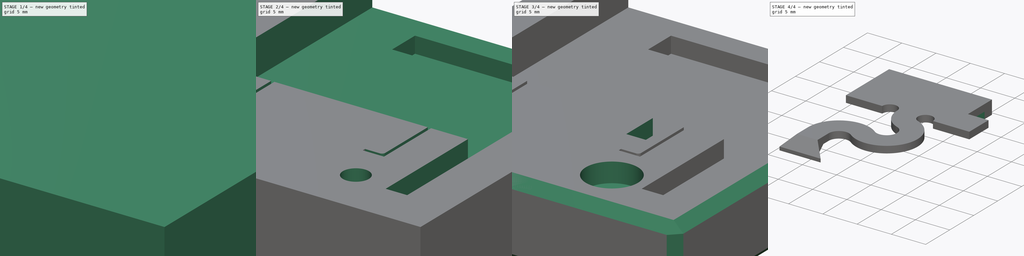
[diagram: build sequence overview — one tinted view per stage of 4, left to right]
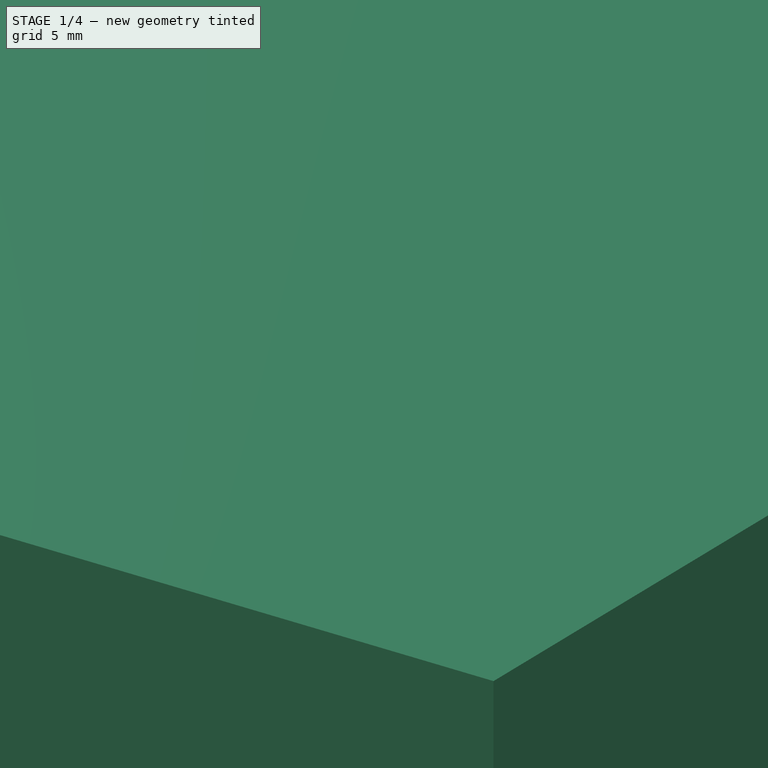
[diagram: stage 1 of 4 — iso view after this stage's code; geometry added in this stage tinted green]
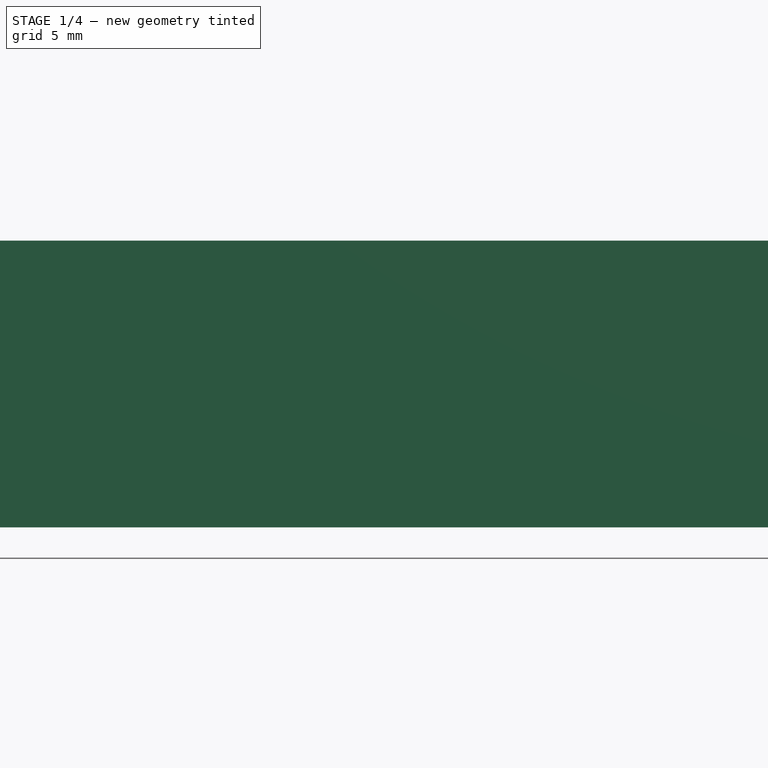
[diagram: stage 1 of 4 — front view after this stage's code; geometry added in this stage tinted green]
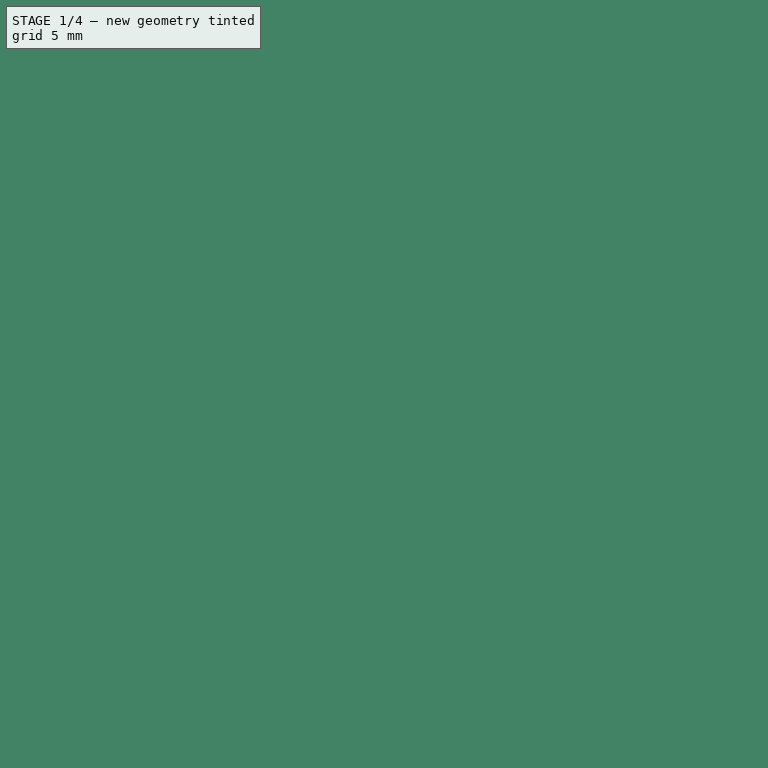
[diagram: stage 1 of 4 — top view after this stage's code; geometry added in this stage tinted green]
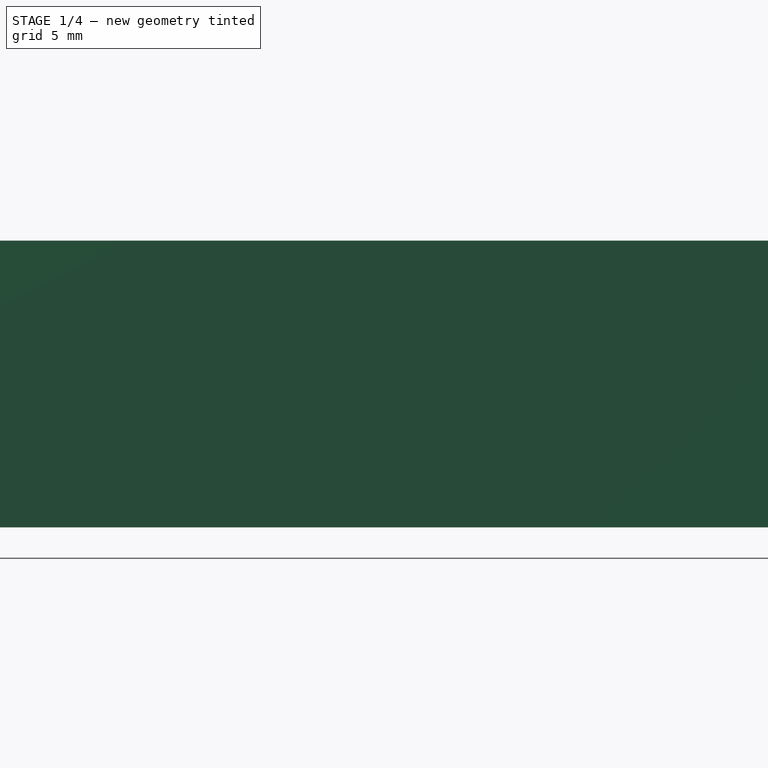
[diagram: stage 1 of 4 — right view after this stage's code; geometry added in this stage tinted green]
FCSTD DOCUMENT  (FreeCAD 0.20R28647 (Git))
Label: Einhell-battery-connector
License: All rights reserved
LicenseURL: http://en.wikipedia.org/wiki/All_rights_reserved
objects: Sketcher::SketchObject×7, PartDesign::Pocket×4, PartDesign::Body×4, PartDesign::Pad×3, PartDesign::Chamfer×2, PartDesign::FeatureBase×2, Part::Cut×1
note: 32 computed .brp shape members not serialized (recipe doc carries the construction recipe); baked Part::Feature solids carry a one-line shape summary decoded from their .brp

FEATURE [Sketcher::SketchObject] Sketch
  FullyConstrained = true
  MapMode = 5
  Placement = pos=(0,0,0) rot=(1,0,0;1.5708rad)
  Support = -> [XZ_Plane]
  sketch-geometry (4):
    g0: LineSegment StartX=-28 StartY=-12 StartZ=0 EndX=-28 EndY=0 EndZ=0
    g1: LineSegment StartX=-28 StartY=0 StartZ=0 EndX=28 EndY=0 EndZ=0
    g2: LineSegment StartX=28 StartY=0 StartZ=0 EndX=28 EndY=-12 EndZ=0
    g3: LineSegment StartX=28 StartY=-12 StartZ=0 EndX=-28 EndY=-12 EndZ=0
  constraints (11):
    c: Vertical(g0)
    c: Coincident(g0,g1)
    c: Coincident(g1,g2)
    c: Vertical(g2)
    c: Coincident(g2,g3)
    c: Symmetric(g0,g1,g-2)
    c: DistanceX(g1,g1) = 56
    c: DistanceY(g2,g2) = 12
    c: Coincident(g3,g0)
    c: Horizontal(g3)
    c: PointOnObject(g1,g-1)
FEATURE [PartDesign::Pad] Pad
  Direction = (0,-1,2e-16)
  Length = 64
  Length2 = 10
  Placement = pos=(0,0,0) rot=(1,0,0;1.5708rad)
  Profile = -> Sketch
  ReferenceAxis = -> Sketch [N_Axis]
  Type = 0
FEATURE [PartDesign::Body] Body
  Group = -> [Sketch,Pad,Sketch002,Pocket,Sketch005,Sketch006,Pad001,Pocket001,Sketch007,Pocket002,Chamfer]
  Origin = -> Origin
  Tip = -> Chamfer
FEATURE [Sketcher::SketchObject] Sketch008
  FullyConstrained = false
  MapMode = 5
  Support = -> [XY_Plane002]
  sketch-geometry (9):
    g0: LineSegment StartX=5.26647 StartY=-64 StartZ=0 EndX=-9.54428 EndY=-64 EndZ=0
    g1: LineSegment StartX=-9 StartY=-50.2 StartZ=0 EndX=-9 EndY=-41.2 EndZ=0
    g2: LineSegment StartX=9 StartY=-50.2 StartZ=0 EndX=5.26647 EndY=-64 EndZ=0
    g3: LineSegment StartX=-9 StartY=-50.2 StartZ=0 EndX=-7.66584 EndY=-56.8971 EndZ=0
    g4: LineSegment StartX=-7.66584 StartY=-56.8971 StartZ=0 EndX=-9.54428 EndY=-64 EndZ=0
    g5: LineSegment StartX=-9 StartY=-41.2 StartZ=0 EndX=6.44761 EndY=-41.2 EndZ=0
    g6: LineSegment StartX=6.44761 StartY=-41.2 StartZ=0 EndX=6.44761 EndY=-45.587 EndZ=0
    g7: LineSegment StartX=6.44761 StartY=-45.587 StartZ=0 EndX=9 EndY=-45.587 EndZ=0
    g8: LineSegment StartX=9 StartY=-45.587 StartZ=0 EndX=9 EndY=-50.2 EndZ=0
  constraints (15):
    c: Coincident(g6,g7)
    c: Coincident(g1,g5)
    c: Horizontal(g0)
    c: Vertical(g1)
    c: Coincident(g8,g2)
    c: Coincident(g2,g0)
    c: Coincident(g1,g3)
    c: Coincident(g3,g4)
    c: Coincident(g4,g0)
    c: Coincident(g5,g6)
    c: Horizontal(g5)
    c: Coincident(g7,g8)
    c: Vertical(g8)
    c: Vertical(g6)
    c: Horizontal(g7)
FEATURE [PartDesign::Pad] Pad002
  Direction = (0,0,1)
  Length = 2
  Length2 = 10
  Profile = -> Sketch008
  ReferenceAxis = -> Sketch008 [N_Axis]
  Reversed = true
  Type = 0
FEATURE [PartDesign::Body] Body003
  Group = -> [Clone]
  Origin = -> Origin003
  Tip = -> Clone
FEATURE [PartDesign::Chamfer] Chamfer001
  Angle = 45
  Base = -> Pad002 [Edge21]
  BaseFeature = -> Pad002
  ChamferType = 0
  FlipDirection = false
  Size = 1.5
  Size2 = 1
  SupportTransform = false
  UseAllEdges = false
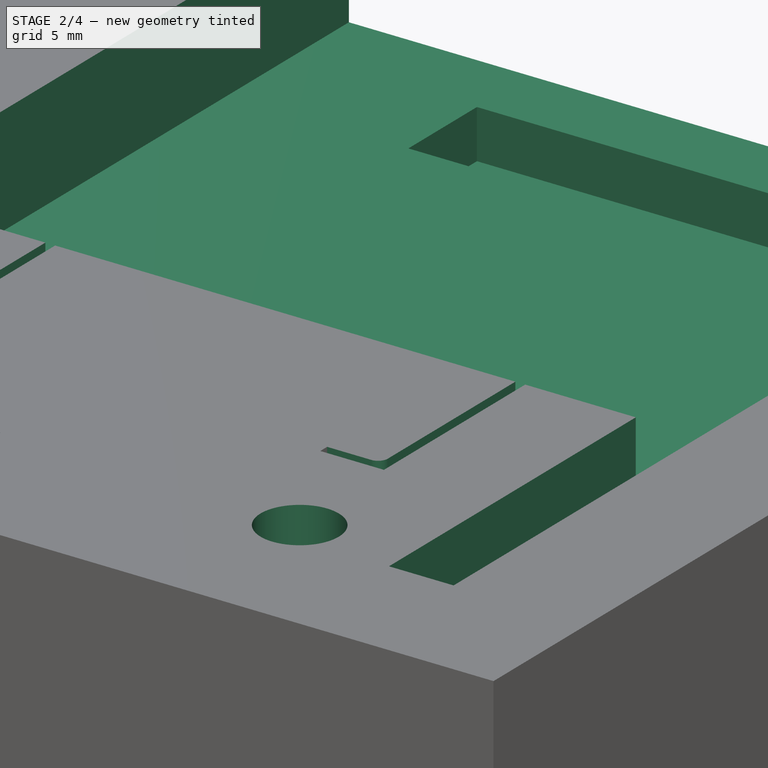
[diagram: stage 2 of 4 — iso view after this stage's code; geometry added in this stage tinted green]
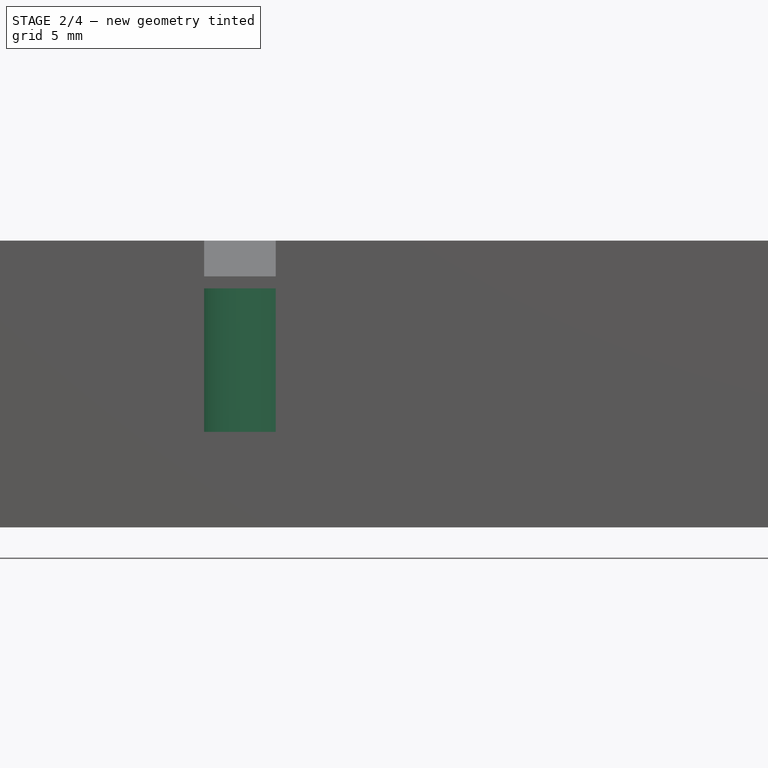
[diagram: stage 2 of 4 — front view after this stage's code; geometry added in this stage tinted green]
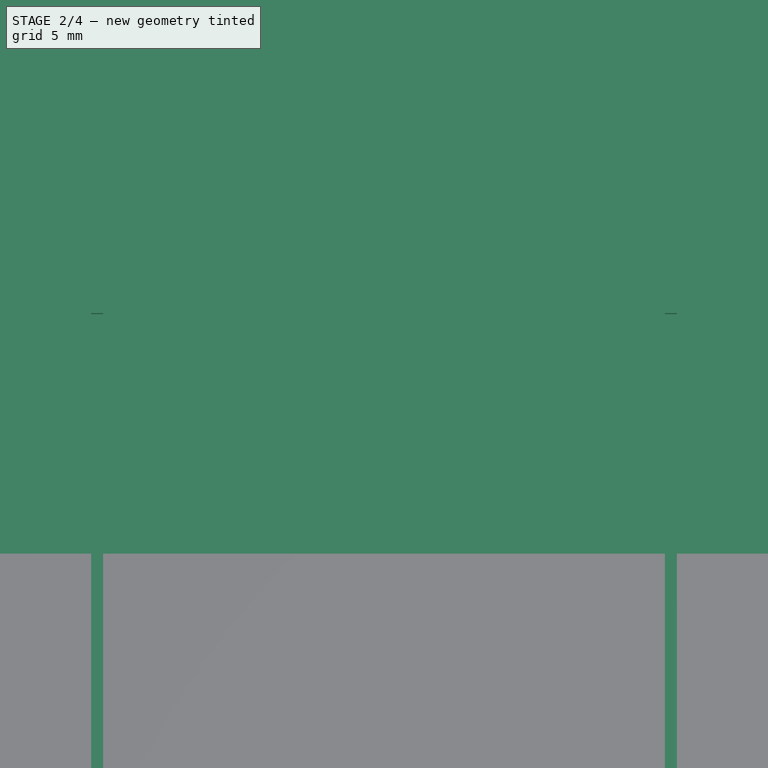
[diagram: stage 2 of 4 — top view after this stage's code; geometry added in this stage tinted green]
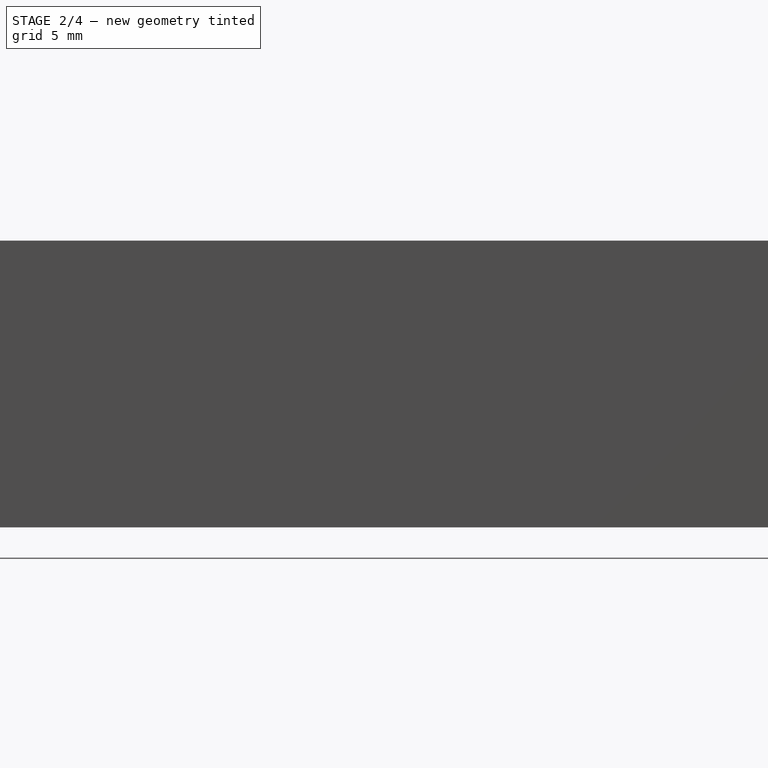
[diagram: stage 2 of 4 — right view after this stage's code; geometry added in this stage tinted green]
FEATURE [Sketcher::SketchObject] Sketch002
  FullyConstrained = false
  MapMode = 5
  Support = -> [XY_Plane]
  sketch-geometry (27):
    g0: LineSegment StartX=-24.2 StartY=0 StartZ=0 EndX=-24.2 EndY=-57.2 EndZ=0
    g1: LineSegment StartX=-24.2 StartY=-57.2 StartZ=0 EndX=-17.9 EndY=-57.2 EndZ=0
    g2: LineSegment StartX=-17.9 StartY=-57.2 StartZ=0 EndX=-17.9 EndY=-39.2 EndZ=0
    g3: LineSegment StartX=-17.9 StartY=-39.2 StartZ=0 EndX=17.9 EndY=-39.2 EndZ=0
    g4: LineSegment StartX=17.9 StartY=-39.2 StartZ=0 EndX=17.9 EndY=-57.2 EndZ=0
    g5: LineSegment StartX=17.9 StartY=-57.2 StartZ=0 EndX=24.2 EndY=-57.2 EndZ=0
    g6: LineSegment StartX=24.2 StartY=-57.2 StartZ=0 EndX=24.2 EndY=0 EndZ=0
    g7: LineSegment StartX=24.2 StartY=0 StartZ=0 EndX=-24.2 EndY=0 EndZ=0
    g8: LineSegment StartX=9 StartY=-50.2 StartZ=0 EndX=9 EndY=-41.2 EndZ=0
    g9: LineSegment StartX=9 StartY=-41.2 StartZ=0 EndX=-9 EndY=-41.2 EndZ=0
    g10: LineSegment StartX=-9 StartY=-41.2 StartZ=0 EndX=-9 EndY=-50.2 EndZ=0
    g11: LineSegment StartX=-9 StartY=-50.2 StartZ=0 EndX=-3.7 EndY=-50.2 EndZ=0
    g12: LineSegment StartX=-7.52646 StartY=-60.2 StartZ=0 EndX=-7.52646 EndY=-67.7749 EndZ=0
    g13: LineSegment StartX=-7.52646 StartY=-67.7749 StartZ=0 EndX=-4.52646 EndY=-67.7749 EndZ=0
    g14: LineSegment StartX=-4.52646 StartY=-67.7749 StartZ=0 EndX=-4.52646 EndY=-60.2 EndZ=0
    g15: ArcOfCircle CenterX=0.627916 CenterY=-55.4413 CenterZ=0 NormalX=0 NormalY=0 NormalZ=1 AngleXU=0 Radius=1.5 StartAngle=4.05751 EndAngle=7.49411
    g16: ArcOfCircle CenterX=-3.02646 CenterY=-60.2 CenterZ=0 NormalX=0 NormalY=0 NormalZ=1 AngleXU=0 Radius=1.5 StartAngle=0.915918 EndAngle=3.14159
    g17: ArcOfCircle CenterX=0.627916 CenterY=-55.4413 CenterZ=0 NormalX=0 NormalY=0 NormalZ=1 AngleXU=0 Radius=4.5 StartAngle=4.05751 EndAngle=7.49411
    g18: ArcOfCircle CenterX=-3.02646 CenterY=-60.2 CenterZ=0 NormalX=0 NormalY=0 NormalZ=1 AngleXU=0 Radius=4.5 StartAngle=0.915918 EndAngle=3.14159
    g19: ArcOfCircle CenterX=2.6 CenterY=-50.2 CenterZ=0 NormalX=0 NormalY=0 NormalZ=1 AngleXU=0 Radius=1.1 StartAngle=-4.4e-15 EndAngle=4.35251
    g20: ArcOfCircle CenterX=2.6 CenterY=-50.2 CenterZ=0 NormalX=0 NormalY=0 NormalZ=1 AngleXU=0 Radius=4.1 StartAngle=3.14159 EndAngle=4.35251
    g21: LineSegment StartX=9 StartY=-50.2 StartZ=0 EndX=3.7 EndY=-50.2 EndZ=0
    g22: ArcOfCircle CenterX=-2.6 CenterY=-50.2 CenterZ=0 NormalX=0 NormalY=0 NormalZ=1 AngleXU=0 Radius=1.1 StartAngle=2.7e-15 EndAngle=3.14159
    g23: LineSegment StartX=-9 StartY=-41.2 StartZ=0 EndX=6 EndY=-41.2 EndZ=0
    g24: LineSegment StartX=6 StartY=-41.2 StartZ=0 EndX=6 EndY=-46.2 EndZ=0
    g25: LineSegment StartX=6 StartY=-46.2 StartZ=0 EndX=9 EndY=-46.2 EndZ=0
    g26: LineSegment StartX=9 StartY=-46.2 StartZ=0 EndX=9 EndY=-50.2 EndZ=0
  constraints (74):
    c: PointOnObject(g0,g-1)
    c: Vertical(g0)
    c: Coincident(g0,g1)
    c: Horizontal(g1)
    c: Coincident(g1,g2)
    c: Vertical(g2)
    c: Coincident(g2,g3)
    c: Horizontal(g3)
    c: Coincident(g3,g4)
    c: Vertical(g4)
    c: Coincident(g4,g5)
    c: Coincident(g5,g6)
    c: PointOnObject(g6,g-1)
    c: Vertical(g6)
    c: Coincident(g6,g7)
    c: Coincident(g7,g0)
    c: Symmetric(g0,g5,g-2)
    c: DistanceX(g7,g7) = 48.4
    c: DistanceY(g6,g6) = 57.2
    c: Horizontal(g5)
    c: DistanceX(g3,g3) = 35.8
    c: DistanceY(g4,g4) = 18
    c: Equal(g1,g5)
    c: Vertical(g8)
    c: Coincident(g8,g9)
    c: Horizontal(g9)
    c: Coincident(g9,g10)
    c: Vertical(g10)
    c: Symmetric(g8,g10,g-2)
    c: DistanceX(g9,g9) = 18
    c: DistanceY(g9,g2) = 2
    c: DistanceY(g10,g10) = 9
    c: Coincident(g10,g11)
    c: Horizontal(g11)
    c: Vertical(g12)
    c: Coincident(g12,g13)
    c: Horizontal(g13)
    c: Coincident(g13,g14)
    c: Vertical(g14)
    c: DistanceX(g13,g13) = 3
    c: Tangent(g16,g14) = 1.5708
    c: Coincident(g17,g15)
    c: Coincident(g18,g16)
    c: Tangent(g18,g12) = -1.5708
    c: Equal(g15,g16)
    c: Tangent(g15,g18) = 1.5708
    c: Radius(g15) = 1.5
    c: DistanceY(g12,g10) = 10
    c: Coincident(g20,g19)
    c: Tangent(g15,g20) = 1.5708
    c: Tangent(g17,g19) = 1.5708
    c: Coincident(g8,g21)
    c: Coincident(g21,g19)
    c: Horizontal(g21)
    c: PointOnObject(g19,g21)
    c: Tangent(g17,g16) = 1.5708
    c: PointOnObject(g20,g11)
    c: Coincident(g22,g11)
    c: PointOnObject(g22,g11)
    c: Equal(g21,g11)
    c: Tangent(g22,g20) = 1.5708
    c: Equal(g19,g22)
    c: Radius(g19) = 1.1
    c: Coincident(g10,g23)
    c: PointOnObject(g23,g9)
    c: Coincident(g23,g24)
    c: Vertical(g24)
    c: Coincident(g24,g25)
    c: PointOnObject(g25,g8)
    c: Horizontal(g25)
    c: Coincident(g25,g26)
    c: Coincident(g26,g21)
    c: DistanceY(g26,g26) = 4
    c: DistanceX(g25,g25) = 3
FEATURE [PartDesign::Pocket] Pocket  label="Inside Contour"
  BaseFeature = -> Pad
  Direction = (0,0,-1)
  Length = 8
  Length2 = 5
  Placement = pos=(0,0,0) rot=(1,0,0;1.5708rad)
  Profile = -> Sketch002
  ReferenceAxis = -> Sketch002 [N_Axis]
  Type = 0
FEATURE [Sketcher::SketchObject] Sketch005
  FullyConstrained = true
  MapMode = 5
  Support = -> [XY_Plane]
  sketch-geometry (22):
    g0: LineSegment StartX=-12.25 StartY=-29 StartZ=0 EndX=-12.25 EndY=-49.5 EndZ=0
    g1: LineSegment StartX=-12.25 StartY=-49.5 StartZ=0 EndX=-3.75 EndY=-49.5 EndZ=0
    g2: LineSegment StartX=-3.75 StartY=-49.5 StartZ=0 EndX=-3.75 EndY=-49 EndZ=0
    g3: LineSegment StartX=-3.75 StartY=-49 StartZ=0 EndX=-11.25 EndY=-49 EndZ=0
    g4: LineSegment StartX=-11.75 StartY=-48.5 StartZ=0 EndX=-11.75 EndY=-29 EndZ=0
    g5: LineSegment StartX=-11.75 StartY=-29 StartZ=0 EndX=-12.25 EndY=-29 EndZ=0
    g6: LineSegment StartX=12.25 StartY=-29 StartZ=0 EndX=12.25 EndY=-49.5 EndZ=0
    g7: LineSegment StartX=12.25 StartY=-49.5 StartZ=0 EndX=3.75 EndY=-49.5 EndZ=0
    g8: LineSegment StartX=3.75 StartY=-49.5 StartZ=0 EndX=3.75 EndY=-49 EndZ=0
    g9: LineSegment StartX=3.75 StartY=-49 StartZ=0 EndX=11.25 EndY=-49 EndZ=0
    g10: LineSegment StartX=11.75 StartY=-48.5 StartZ=0 EndX=11.75 EndY=-29 EndZ=0
    g11: LineSegment StartX=11.75 StartY=-29 StartZ=0 EndX=12.25 EndY=-29 EndZ=0
    g12: LineSegment StartX=-15 StartY=-3.8 StartZ=0 EndX=15 EndY=-3.8 EndZ=0
    g13: LineSegment StartX=15 StartY=-3.8 StartZ=0 EndX=15 EndY=-8.8 EndZ=0
    g14: LineSegment StartX=15 StartY=-8.8 StartZ=0 EndX=-15 EndY=-8.8 EndZ=0
    g15: LineSegment StartX=-15 StartY=-8.8 StartZ=0 EndX=-15 EndY=-3.8 EndZ=0
    g16: ArcOfCircle CenterX=-11.25 CenterY=-48.5 CenterZ=0 NormalX=0 NormalY=0 NormalZ=1 AngleXU=0 Radius=0.5 StartAngle=3.14159 EndAngle=4.71239
    g17: GeomPoint X=-11.75 Y=-49 Z=0
    g18: ArcOfCircle CenterX=11.25 CenterY=-48.5 CenterZ=0 NormalX=0 NormalY=0 NormalZ=1 AngleXU=0 Radius=0.5 StartAngle=4.71239 EndAngle=6.28319
    g19: GeomPoint X=11.75 Y=-49 Z=0
    g20: Circle CenterX=-12.5 CenterY=-56 CenterZ=0 NormalX=0 NormalY=0 NormalZ=1 AngleXU=0 Radius=2
    g21: Circle CenterX=12.5 CenterY=-56 CenterZ=0 NormalX=0 NormalY=0 NormalZ=1 AngleXU=0 Radius=2
  constraints (57):
    c: Vertical(g0)
    c: Coincident(g0,g1)
    c: Horizontal(g1)
    c: Coincident(g1,g2)
    c: Coincident(g2,g3)
    c: Horizontal(g3)
    c: Coincident(g4,g5)
    c: Horizontal(g5)
    c: Vertical(g6)
    c: Coincident(g6,g7)
    c: Horizontal(g7)
    c: Coincident(g7,g8)
    c: Coincident(g8,g9)
    c: Horizontal(g9)
    c: Vertical(g10)
    c: Coincident(g10,g11)
    c: Coincident(g6,g11)
    c: Horizontal(g11)
    c: Vertical(g4)
    c: Vertical(g8)
    c: Equal(g8,g2)
    c: Equal(g2,g5)
    c: Coincident(g0,g5)
    c: Symmetric(g4,g10,g-2)
    c: DistanceX(g0,g10) = 24
    c: DistanceX(g11,g11) = 0.5
    c: Symmetric(g2,g8,g-2)
    c: DistanceY(g6) = -29
    c: Symmetric(g0,g6,g-2)
    c: DistanceX(g9,g19) = 8
    c: DistanceY(g19,g10) = 20
    c: Coincident(g12,g13)
    c: Coincident(g13,g14)
    c: Coincident(g14,g15)
    c: Coincident(g15,g12)
    c: Horizontal(g12)
    c: Vertical(g13)
    c: Vertical(g15)
    c: DistanceY(g12) = -3.8
    c: DistanceY(g13,g13) = 5
    c: DistanceX(g14,g14) = 30
    c: Symmetric(g13,g14,g-2)
    c: PointOnObject(g17,g3)
    c: PointOnObject(g17,g4)
    c: Tangent(g3,g16) = 1.5708
    c: Tangent(g4,g16) = 1.5708
    c: PointOnObject(g19,g9)
    c: PointOnObject(g19,g10)
    c: Tangent(g9,g18) = -1.5708
    c: Tangent(g10,g18) = -1.5708
    c: Equal(g18,g16)
    c: Radius(g16) = 0.5
    c: Symmetric(g20,g21,g-2)
    c: Equal(g21,g20)
    c: Diameter(g21) = 4
    c: DistanceX(g20,g21) = 25
    c: DistanceY(g21) = -56
FEATURE [Sketcher::SketchObject] Sketch006
  FullyConstrained = true
  MapMode = 5
  Support = -> [XY_Plane]
  sketch-geometry (10):
    g0: LineSegment StartX=-25.2 StartY=-12 StartZ=0 EndX=-22.6142 EndY=-12 EndZ=0
    g1: LineSegment StartX=-22.6142 StartY=-12 StartZ=0 EndX=-21.2 EndY=-13.4142 EndZ=0
    g2: LineSegment StartX=-21.2 StartY=-13.4142 StartZ=0 EndX=-21.2 EndY=-58 EndZ=0
    g3: LineSegment StartX=-21.2 StartY=-58 StartZ=0 EndX=-25.2 EndY=-58 EndZ=0
    g4: LineSegment StartX=-25.2 StartY=-58 StartZ=0 EndX=-25.2 EndY=-12 EndZ=0
    g5: LineSegment StartX=25.2 StartY=-12 StartZ=0 EndX=22.6142 EndY=-12 EndZ=0
    g6: LineSegment StartX=22.6142 StartY=-12 StartZ=0 EndX=21.2 EndY=-13.4142 EndZ=0
    g7: LineSegment StartX=21.2 StartY=-13.4142 StartZ=0 EndX=21.2 EndY=-58 EndZ=0
    g8: LineSegment StartX=21.2 StartY=-58 StartZ=0 EndX=25.2 EndY=-58 EndZ=0
    g9: LineSegment StartX=25.2 StartY=-58 StartZ=0 EndX=25.2 EndY=-12 EndZ=0
  constraints (28):
    c: Coincident(g0,g1)
    c: Coincident(g1,g2)
    c: Vertical(g2)
    c: Coincident(g2,g3)
    c: Horizontal(g3)
    c: Coincident(g3,g4)
    c: Coincident(g4,g0)
    c: Vertical(g4)
    c: Coincident(g5,g6)
    c: Coincident(g6,g7)
    c: Vertical(g7)
    c: Coincident(g7,g8)
    c: Horizontal(g8)
    c: Coincident(g8,g9)
    c: Coincident(g9,g5)
    c: Vertical(g9)
    c: Symmetric(g0,g5,g-2)
    c: Symmetric(g6,g1,g-2)
    c: DistanceY(g5) = -12
    c: Horizontal(g5)
    c: Horizontal(g0)
    c: Angle(g1) = -0.785398
    c: DistanceX(g1,g6) = 42.4
    c: Equal(g5,g0)
    c: Distance(g1) = 2
    c: DistanceX(g3,g3) = 4
    c: DistanceY(g4,g4) = 46
    c: Equal(g4,g9)
FEATURE [PartDesign::Pad] Pad001  label="Hooks"
  BaseFeature = -> Pocket
  Direction = (0,0,1)
  Length = 4.5
  Length2 = 10
  Placement = pos=(0,0,0) rot=(1,0,0;1.5708rad)
  Profile = -> Sketch006
  ReferenceAxis = -> Sketch006 [N_Axis]
  Reversed = true
  Type = 0
FEATURE [PartDesign::Pocket] Pocket001  label="Blades"
  BaseFeature = -> Pad001
  Direction = (0,0,-1)
  Length = 10.5
  Length2 = 5
  Placement = pos=(0,0,0) rot=(1,0,0;1.5708rad)
  Profile = -> Sketch005
  ReferenceAxis = -> Sketch005 [N_Axis]
  Type = 0
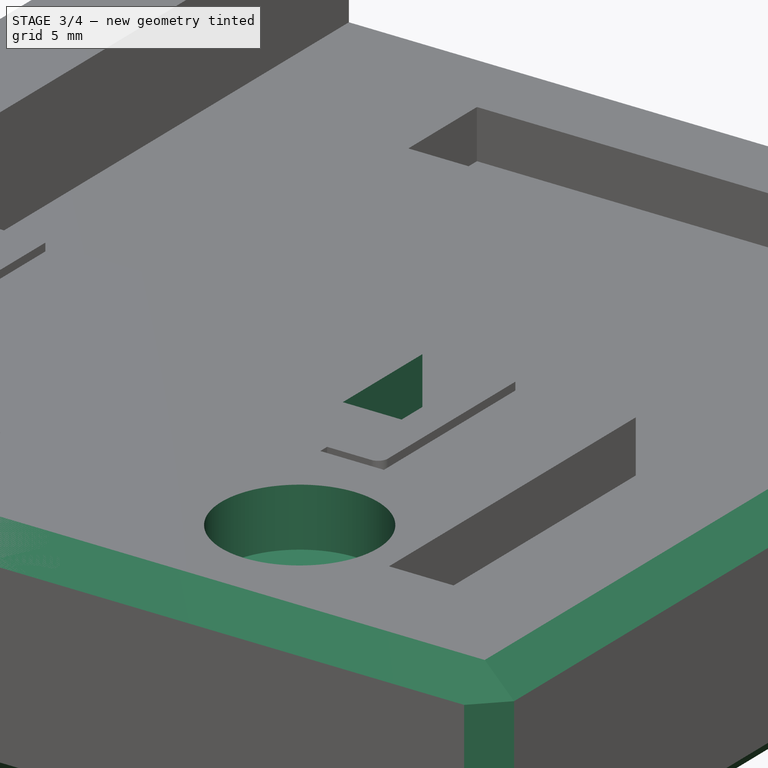
[diagram: stage 3 of 4 — iso view after this stage's code; geometry added in this stage tinted green]
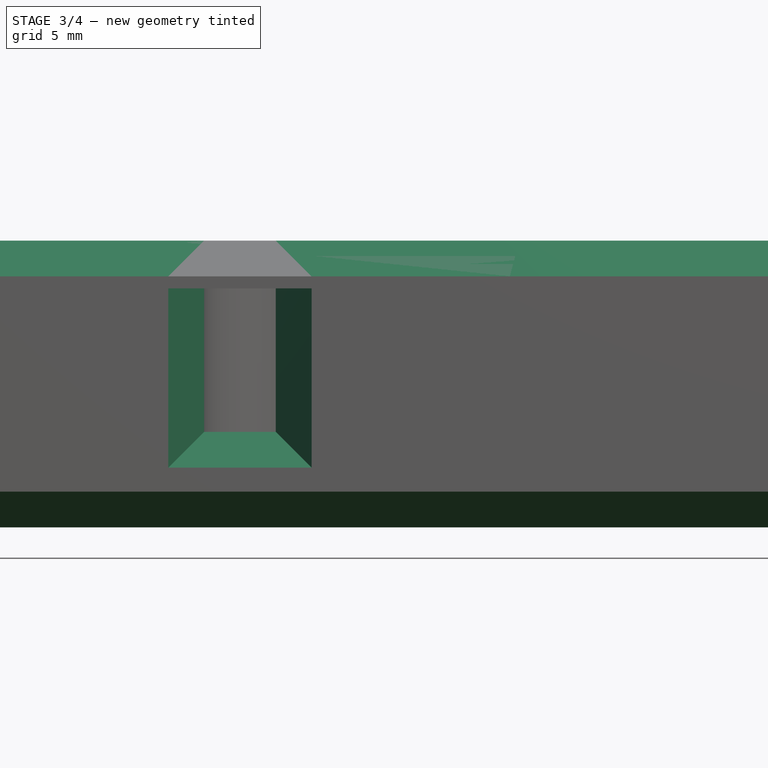
[diagram: stage 3 of 4 — front view after this stage's code; geometry added in this stage tinted green]
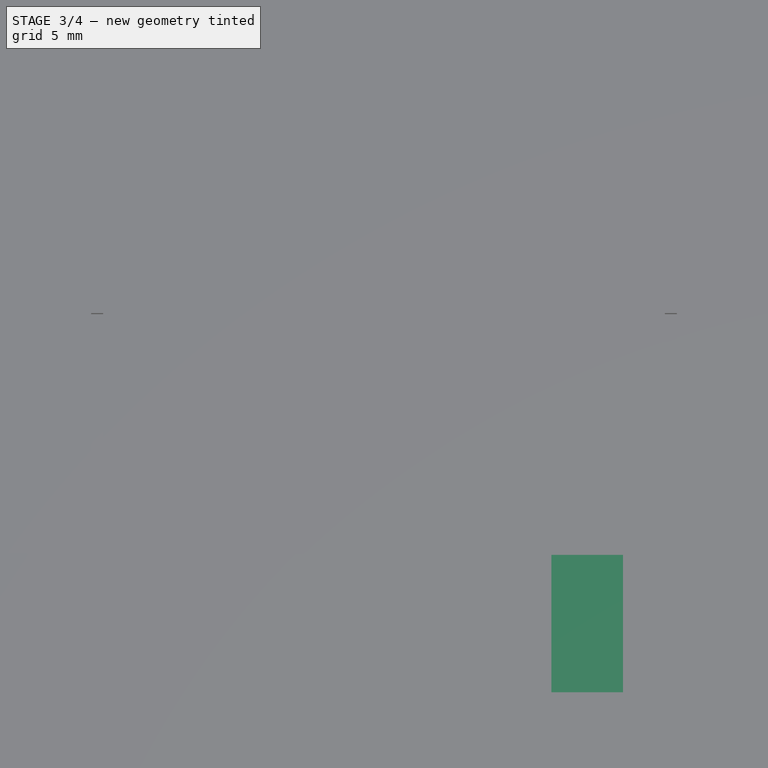
[diagram: stage 3 of 4 — top view after this stage's code; geometry added in this stage tinted green]
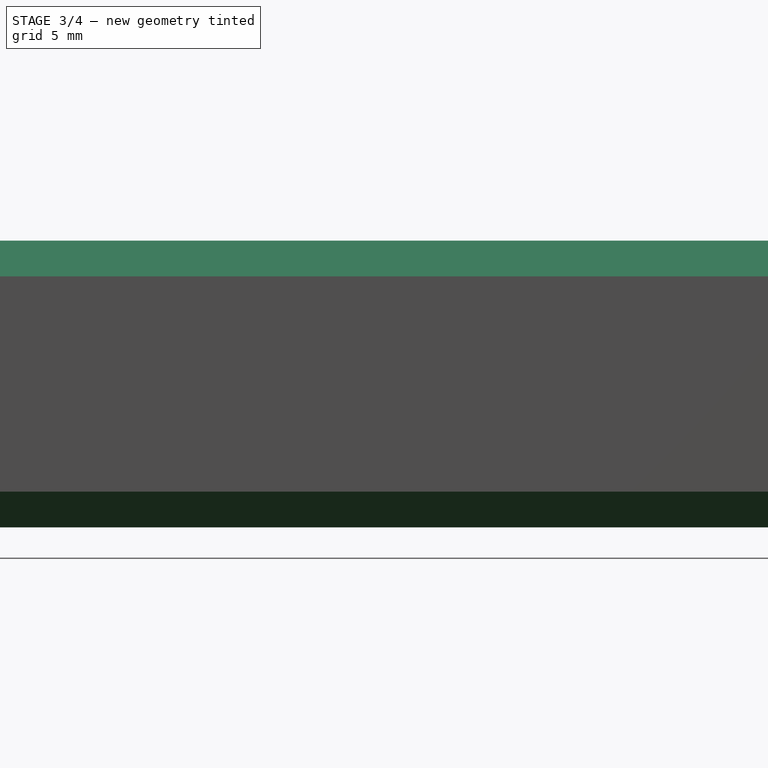
[diagram: stage 3 of 4 — right view after this stage's code; geometry added in this stage tinted green]
FEATURE [Sketcher::SketchObject] Sketch007
  FullyConstrained = true
  MapMode = 5
  Support = -> [XY_Plane]
  sketch-geometry (6):
    g0: LineSegment StartX=7 StartY=-38 StartZ=0 EndX=10 EndY=-38 EndZ=0
    g1: LineSegment StartX=10 StartY=-38 StartZ=0 EndX=10 EndY=-45 EndZ=0
    g2: LineSegment StartX=10 StartY=-45 StartZ=0 EndX=7 EndY=-45 EndZ=0
    g3: LineSegment StartX=7 StartY=-45 StartZ=0 EndX=7 EndY=-38 EndZ=0
    g4: Circle CenterX=-12.5 CenterY=-56 CenterZ=0 NormalX=0 NormalY=0 NormalZ=1 AngleXU=0 Radius=4
    g5: Circle CenterX=12.5 CenterY=-56 CenterZ=0 NormalX=0 NormalY=0 NormalZ=1 AngleXU=0 Radius=4
  constraints (17):
    c: Coincident(g0,g1)
    c: Coincident(g1,g2)
    c: Coincident(g2,g3)
    c: Coincident(g3,g0)
    c: Horizontal(g0)
    c: Horizontal(g2)
    c: Vertical(g1)
    c: Vertical(g3)
    c: DistanceY(g1) = -45
    c: DistanceX(g0) = 7
    c: DistanceX(g0,g0) = 3
    c: DistanceY(g3,g3) = 7
    c: Equal(g4,g5)
    c: Symmetric(g5,g4,g-2)
    c: Diameter(g5) = 8
    c: DistanceX(g4,g5) = 25
    c: DistanceY(g5) = -56
FEATURE [PartDesign::Pocket] Pocket002  label="Code-notch"
  BaseFeature = -> Pocket001
  Direction = (0,0,-1)
  Length = 3
  Length2 = 5
  Placement = pos=(0,0,0) rot=(1,0,0;1.5708rad)
  Profile = -> Sketch007
  ReferenceAxis = -> Sketch007 [N_Axis]
  Type = 0
FEATURE [PartDesign::Chamfer] Chamfer
  Angle = 45
  Base = -> Pocket002 [Face2,Face6,Face1,Face5,Edge8,Edge29]
  BaseFeature = -> Pocket002
  ChamferType = 0
  FlipDirection = false
  Placement = pos=(0,0,0) rot=(1,0,0;1.5708rad)
  Size = 1.5
  Size2 = 1
  SupportTransform = false
  UseAllEdges = false
FEATURE [PartDesign::FeatureBase] Clone
  BaseFeature = -> Body
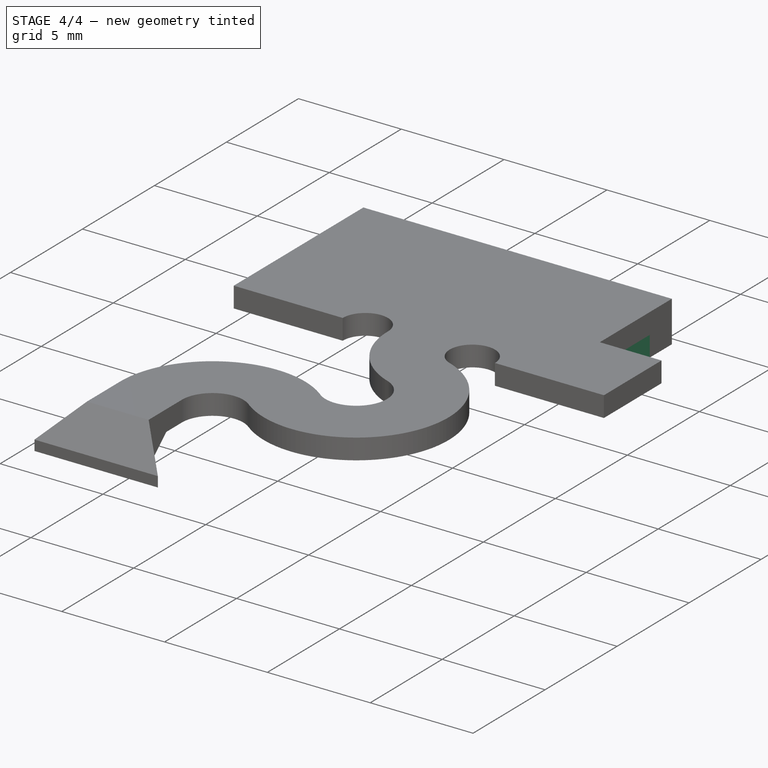
[diagram: stage 4 of 4 — iso view after this stage's code; geometry added in this stage tinted green]
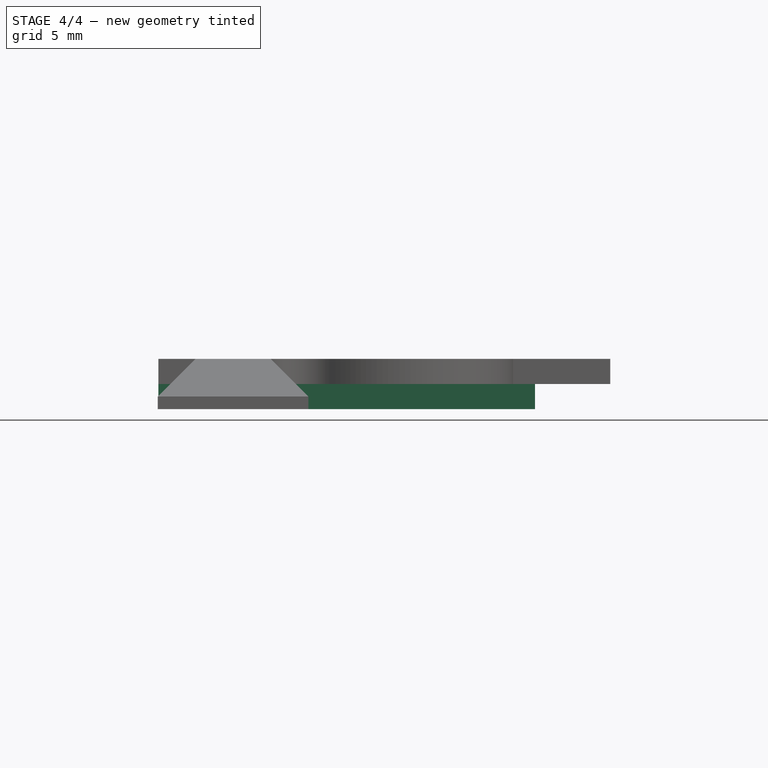
[diagram: stage 4 of 4 — front view after this stage's code; geometry added in this stage tinted green]
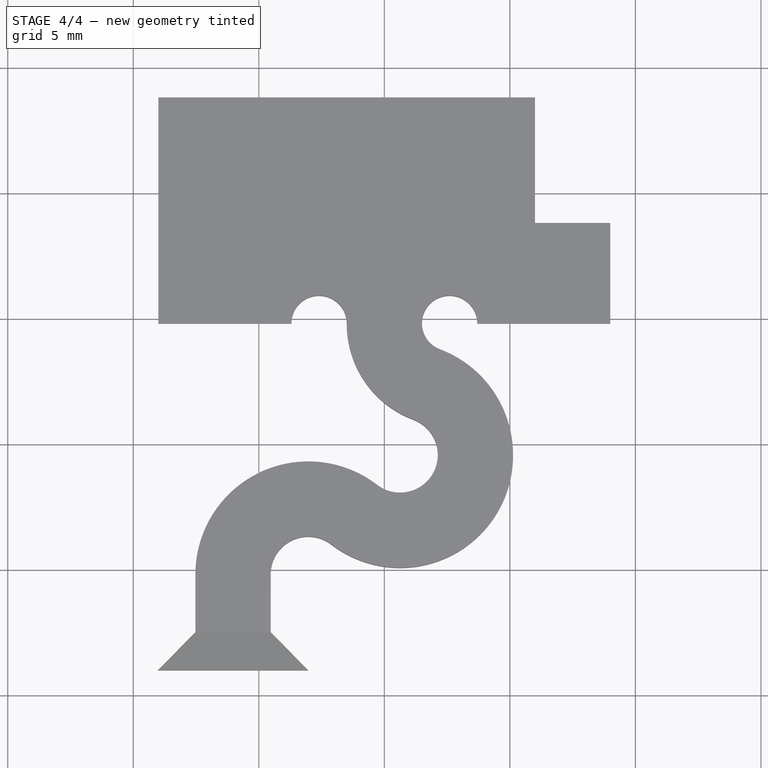
[diagram: stage 4 of 4 — top view after this stage's code; geometry added in this stage tinted green]
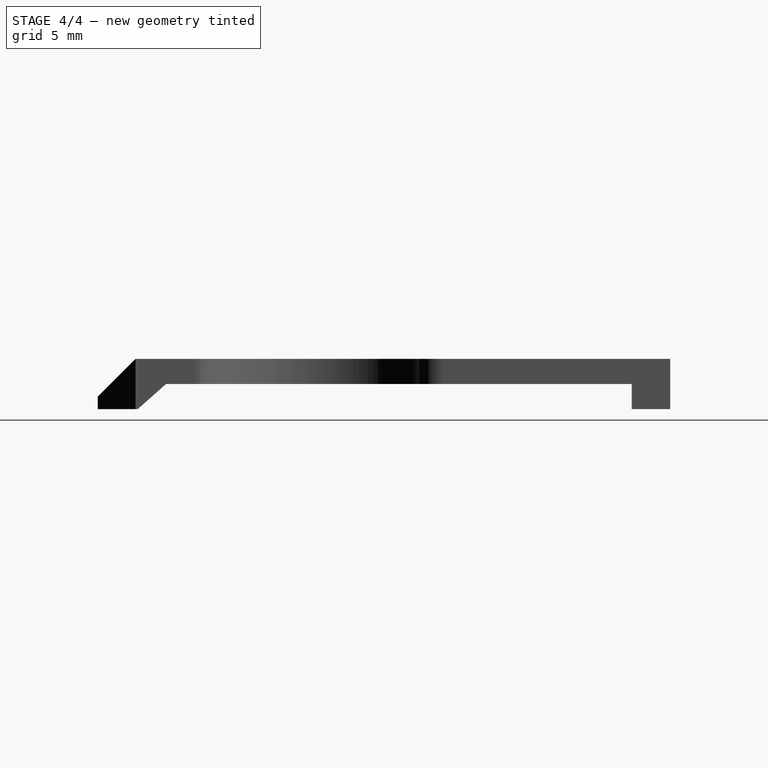
[diagram: stage 4 of 4 — right view after this stage's code; geometry added in this stage tinted green]
FEATURE [PartDesign::Body] Body002
  Group = -> [Sketch008,Pad002,Chamfer001]
  Origin = -> Origin002
  Tip = -> Chamfer001
FEATURE [Part::Cut] Cut
  Base = -> Body002
  Tool = -> Body003
FEATURE [PartDesign::FeatureBase] BaseFeature
  BaseFeature = -> Cut
FEATURE [Sketcher::SketchObject] Sketch009
  FullyConstrained = false
  MapMode = 5
  Placement = pos=(0,0,0) rot=(0.57735,0.57735,0.57735;2.0944rad)
  Support = -> [YZ_Plane004]
  sketch-geometry (4):
    g0: LineSegment StartX=-42.7307 StartY=-2 StartZ=0 EndX=-62.4091 EndY=-2 EndZ=0
    g1: LineSegment StartX=-61.2821 StartY=-1 StartZ=0 EndX=-42.7307 EndY=-1 EndZ=0
    g2: LineSegment StartX=-42.7307 StartY=-1 StartZ=0 EndX=-42.7307 EndY=-2 EndZ=0
    g3: LineSegment StartX=-61.2821 StartY=-1 StartZ=0 EndX=-62.4091 EndY=-2 EndZ=0
  constraints (9):
    c: Coincident(g1,g2)
    c: Coincident(g2,g0)
    c: Horizontal(g0)
    c: Horizontal(g1)
    c: Vertical(g2)
    c: DistanceY(g2,g2) = 1
    c: Coincident(g3,g1)
    c: Coincident(g3,g0)
    c: DistanceY(g1) = -1
FEATURE [PartDesign::Pocket] Pocket003
  BaseFeature = -> BaseFeature
  Direction = (-1,2e-16,-3e-16)
  Length = 5
  Length2 = 5
  Midplane = true
  Profile = -> Sketch009
  ReferenceAxis = -> Sketch009 [N_Axis]
  Type = 1
FEATURE [PartDesign::Body] Body004  label="CableCover"
  BaseFeature = -> Cut
  Group = -> [BaseFeature,Sketch009,Pocket003]
  Origin = -> Origin004
  Tip = -> Pocket003
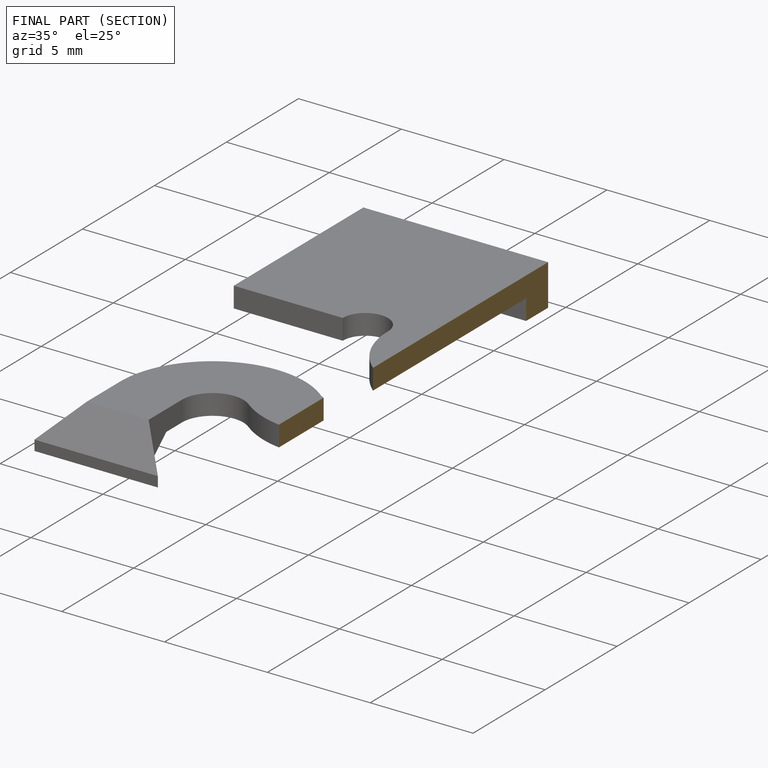
[diagram: finished part — half-section view (interior)]
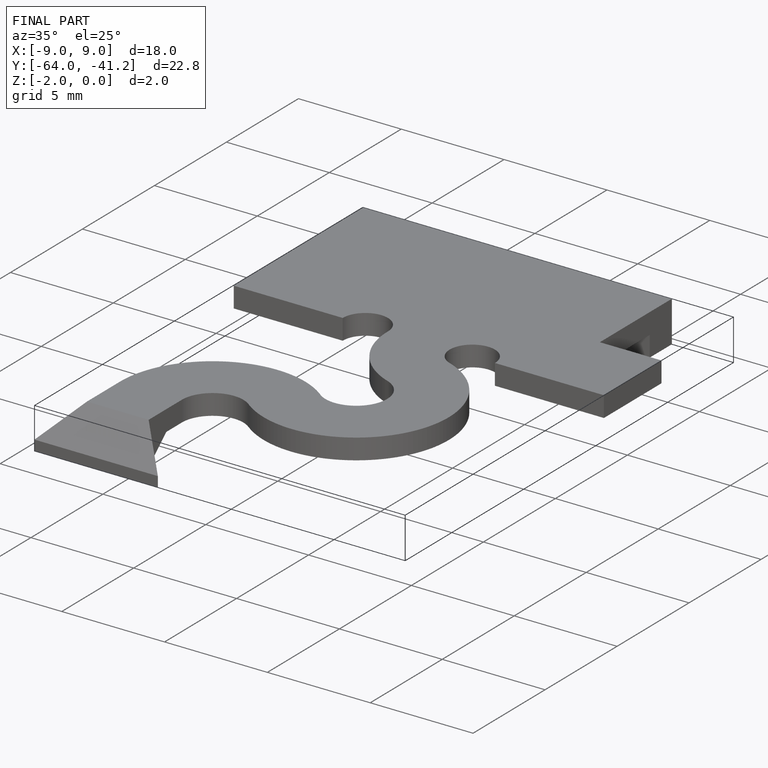
[diagram: finished part — iso view with bounding-box wireframe]
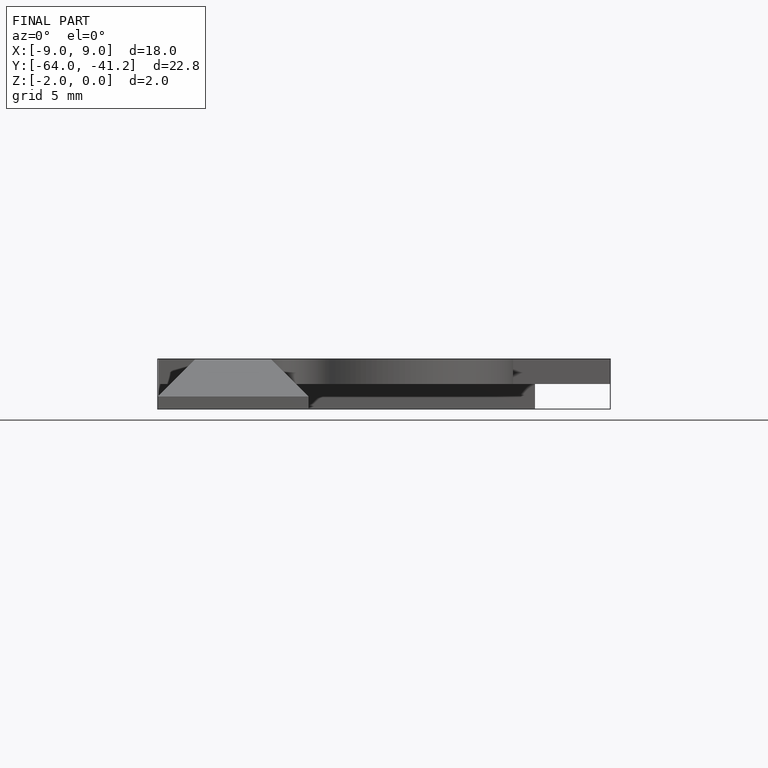
[diagram: finished part — front view with bounding-box wireframe]
